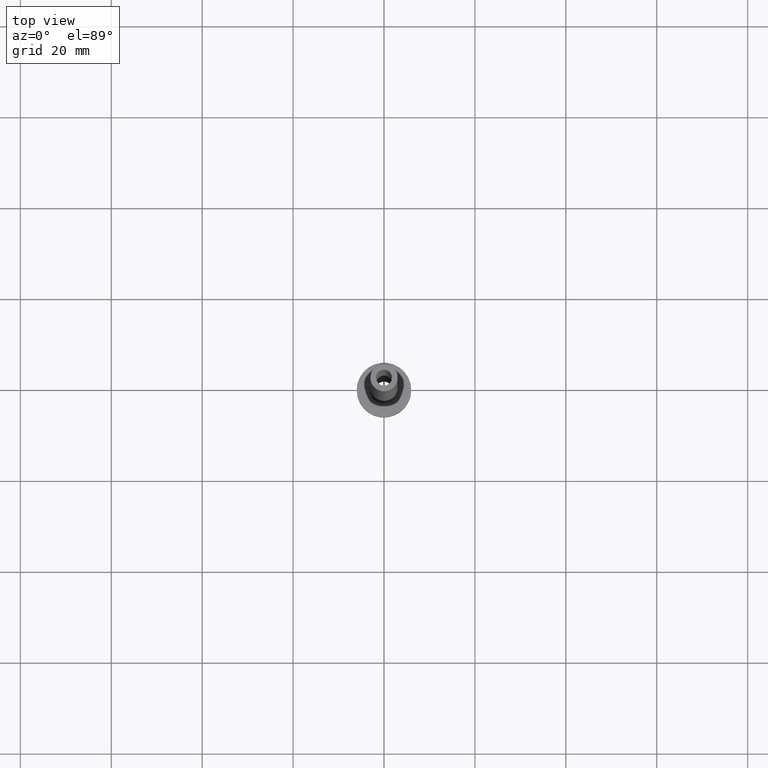
[diagram: clean part render]
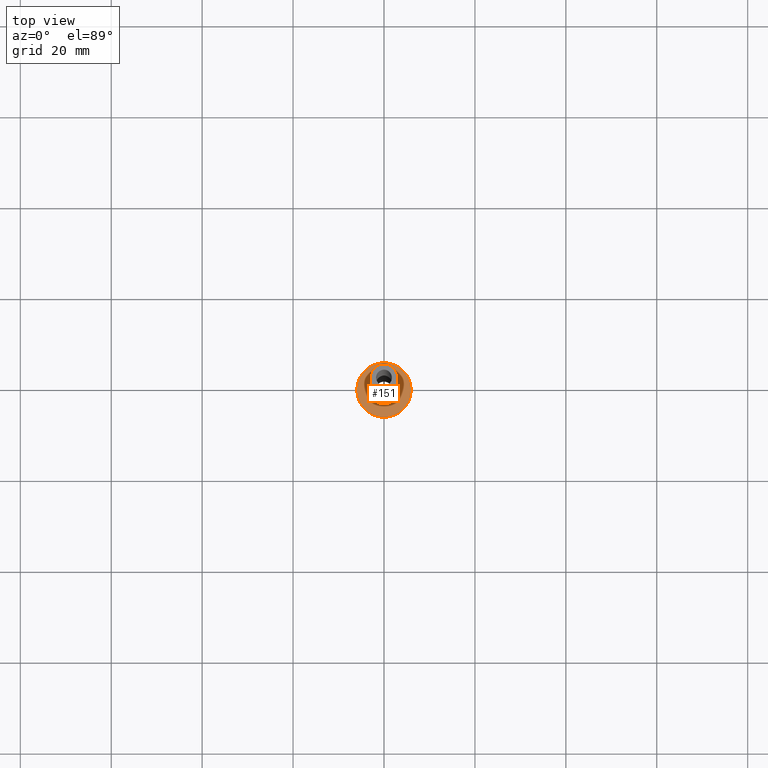
[diagram: same view with one face highlighted and labeled with its STEP entity id]
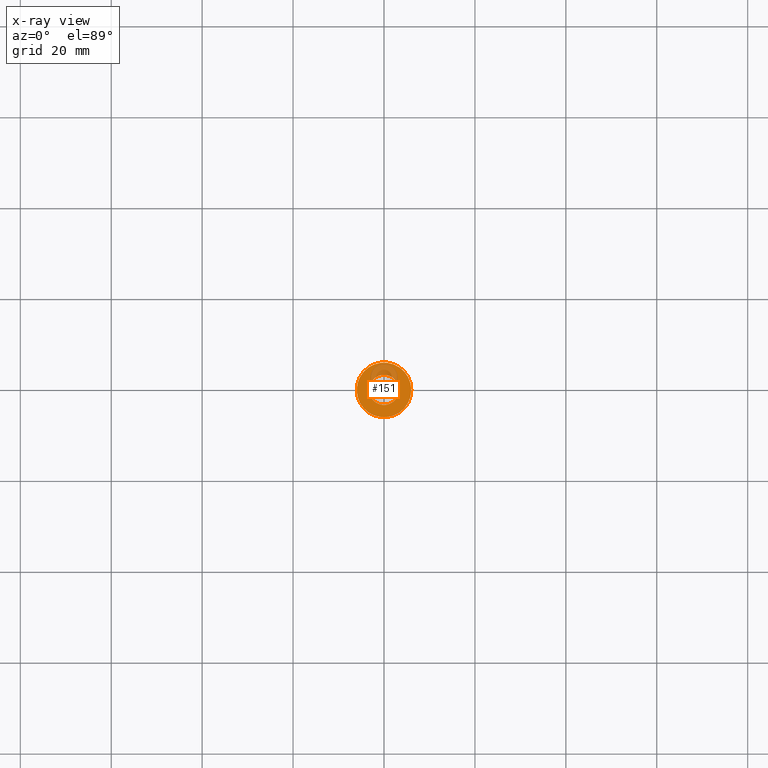
[diagram: x-ray of the same camera — body ghosted, the highlighted face saturated]
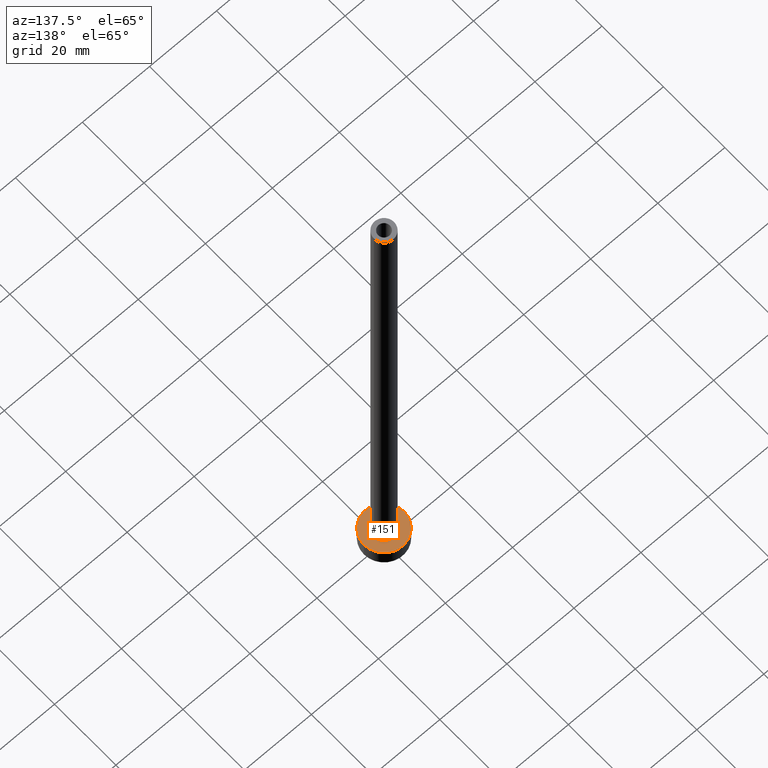
[diagram: same view with one face highlighted and labeled with its STEP entity id]
A machine part, top view. The second image highlights one B-rep face of the part: STEP entity #151.
The next image is the same camera in x-ray: the body ghosted, the highlighted face saturated — about 18% of this face is hidden behind the body in this view.
A second angle (auxiliary view) of the same face is appended — the face is thin or edge-on in the first view.
In plain terms, the highlighted planar face has unit normal (0, 0, 1).
Its self-contained STEP definition (entity closure, byte-faithful):
#1 = DIRECTION ( 'NONE',  ( 0.000000000000000000, 0.000000000000000000, 1.000000000000000000 ) ) ;
#5 = DIRECTION ( 'NONE',  ( -0.000000000000000000, -0.000000000000000000, -1.000000000000000000 ) ) ;
#7 = AXIS2_PLACEMENT_3D ( 'NONE', #115, #1, #289 ) ;
#22 = AXIS2_PLACEMENT_3D ( 'NONE', #353, #5, #357 ) ;
#49 = EDGE_LOOP ( 'NONE', ( #105, #99 ) ) ;
#65 = CARTESIAN_POINT ( 'NONE',  ( -6.000000000000000888, 0.000000000000000000, 5.000000000000000000 ) ) ;
#71 = CARTESIAN_POINT ( 'NONE',  ( 0.000000000000000000, 0.000000000000000000, 5.000000000000000000 ) ) ;
#93 = CARTESIAN_POINT ( 'NONE',  ( 3.300000000000000266, 0.000000000000000000, 4.999999999999999112 ) ) ;
#99 = ORIENTED_EDGE ( 'NONE', *, *, #346, .T. ) ;
#105 = ORIENTED_EDGE ( 'NONE', *, *, #358, .T. ) ;
#115 = CARTESIAN_POINT ( 'NONE',  ( 0.000000000000000000, 0.000000000000000000, 5.000000000000000000 ) ) ;
#127 = FACE_BOUND ( 'NONE', #147, .T. ) ;
#129 = CIRCLE ( 'NONE', #362, 3.300000000000000266 ) ;
#130 = EDGE_CURVE ( 'NONE', #208, #434, #129, .T. ) ;
#135 = DIRECTION ( 'NONE',  ( 1.000000000000000000, 0.000000000000000000, 0.000000000000000000 ) ) ;
#147 = EDGE_LOOP ( 'NONE', ( #371, #258 ) ) ;
#151 = ADVANCED_FACE ( 'NONE', ( #127, #265 ), #412, .T. ) ;
#184 = CARTESIAN_POINT ( 'NONE',  ( 6.000000000000000888, 7.347880794884120722E-16, 5.000000000000000000 ) ) ;
#200 = AXIS2_PLACEMENT_3D ( 'NONE', #235, #202, #408 ) ;
#202 = DIRECTION ( 'NONE',  ( 0.000000000000000000, 0.000000000000000000, 1.000000000000000000 ) ) ;
#208 = VERTEX_POINT ( 'NONE', #93 ) ;
#219 = DIRECTION ( 'NONE',  ( 0.000000000000000000, 0.000000000000000000, 1.000000000000000000 ) ) ;
#235 = CARTESIAN_POINT ( 'NONE',  ( 0.000000000000000000, 0.000000000000000000, 5.000000000000000000 ) ) ;
#258 = ORIENTED_EDGE ( 'NONE', *, *, #392, .T. ) ;
#265 = FACE_OUTER_BOUND ( 'NONE', #49, .T. ) ;
#268 = CARTESIAN_POINT ( 'NONE',  ( 0.000000000000000000, 0.000000000000000000, 5.000000000000000000 ) ) ;
#276 = CIRCLE ( 'NONE', #22, 3.300000000000000266 ) ;
#289 = DIRECTION ( 'NONE',  ( 1.000000000000000000, 0.000000000000000000, 0.000000000000000000 ) ) ;
#300 = CIRCLE ( 'NONE', #342, 6.000000000000000888 ) ;
#328 = VERTEX_POINT ( 'NONE', #65 ) ;
#332 = CIRCLE ( 'NONE', #7, 6.000000000000000888 ) ;
#342 = AXIS2_PLACEMENT_3D ( 'NONE', #71, #219, #383 ) ;
#346 = EDGE_CURVE ( 'NONE', #417, #328, #300, .T. ) ;
#353 = CARTESIAN_POINT ( 'NONE',  ( 0.000000000000000000, 0.000000000000000000, 5.000000000000000000 ) ) ;
#357 = DIRECTION ( 'NONE',  ( 1.000000000000000000, 0.000000000000000000, 0.000000000000000000 ) ) ;
#358 = EDGE_CURVE ( 'NONE', #328, #417, #332, .T. ) ;
#362 = AXIS2_PLACEMENT_3D ( 'NONE', #268, #443, #135 ) ;
#371 = ORIENTED_EDGE ( 'NONE', *, *, #130, .T. ) ;
#383 = DIRECTION ( 'NONE',  ( 1.000000000000000000, 0.000000000000000000, 0.000000000000000000 ) ) ;
#392 = EDGE_CURVE ( 'NONE', #434, #208, #276, .T. ) ;
#408 = DIRECTION ( 'NONE',  ( 1.000000000000000000, 0.000000000000000000, -0.000000000000000000 ) ) ;
#412 = PLANE ( 'NONE',  #200 ) ;
#417 = VERTEX_POINT ( 'NONE', #184 ) ;
#434 = VERTEX_POINT ( 'NONE', #456 ) ;
#443 = DIRECTION ( 'NONE',  ( -0.000000000000000000, -0.000000000000000000, -1.000000000000000000 ) ) ;
#456 = CARTESIAN_POINT ( 'NONE',  ( -3.300000000000000266, 4.041334437186266003E-16, 4.999999999999999112 ) ) ;